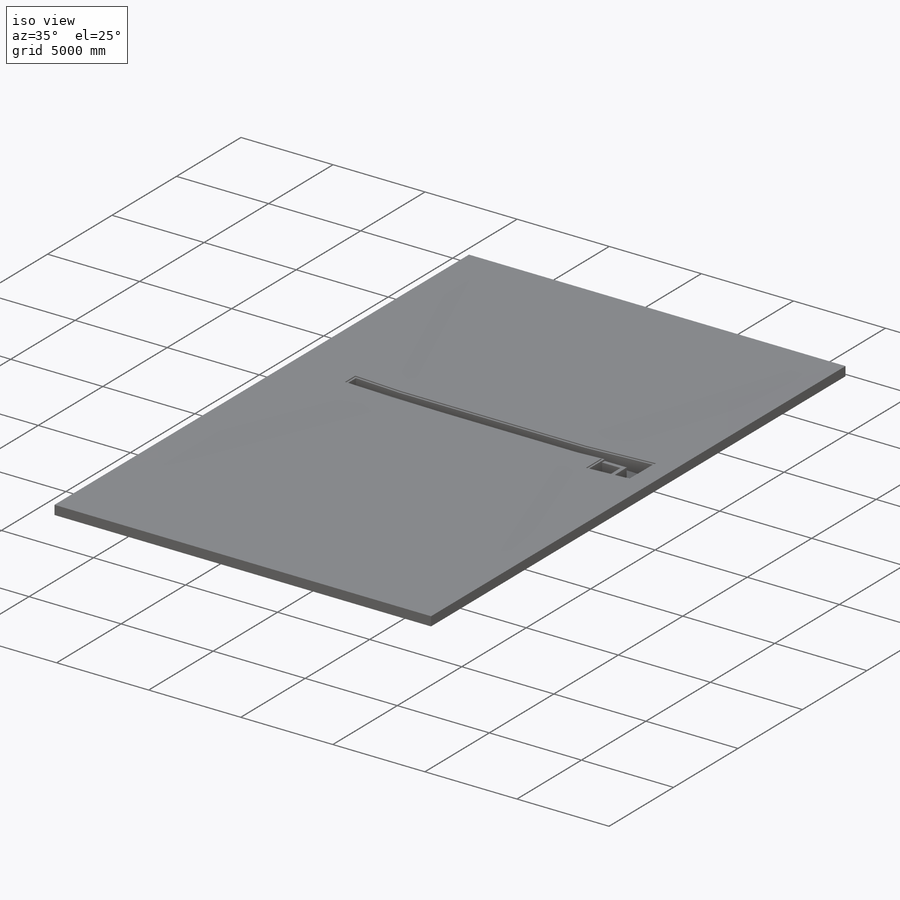
[diagram: iso view]
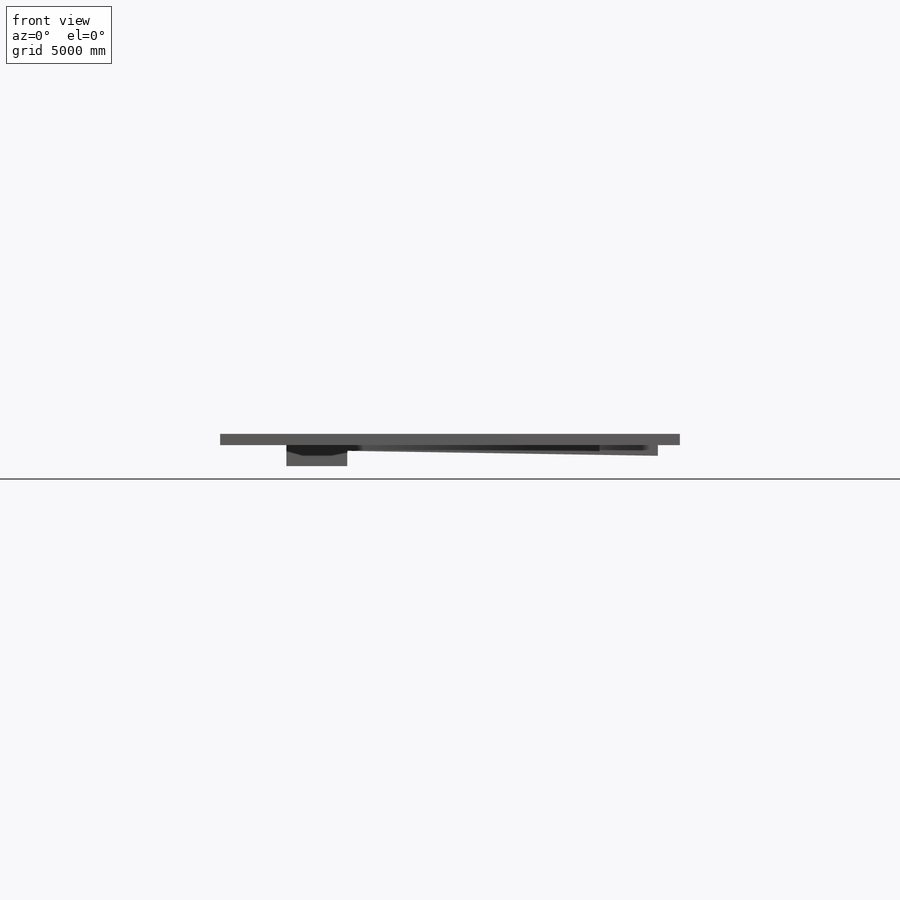
[diagram: front view]
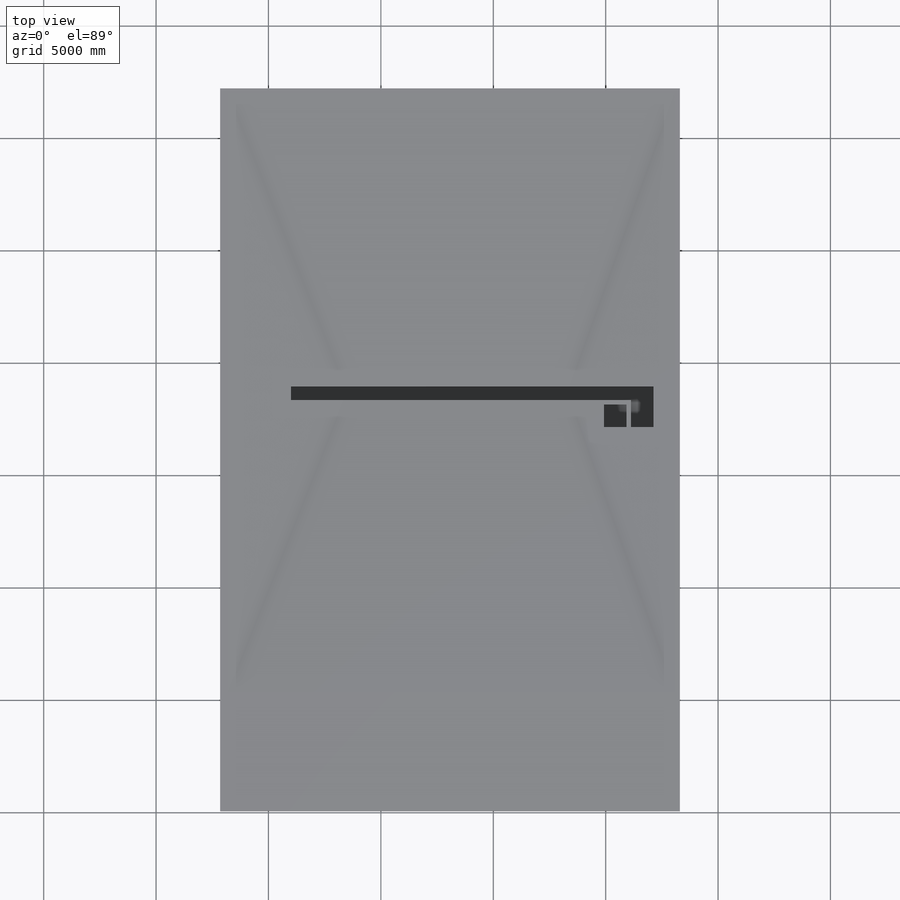
[diagram: top view]
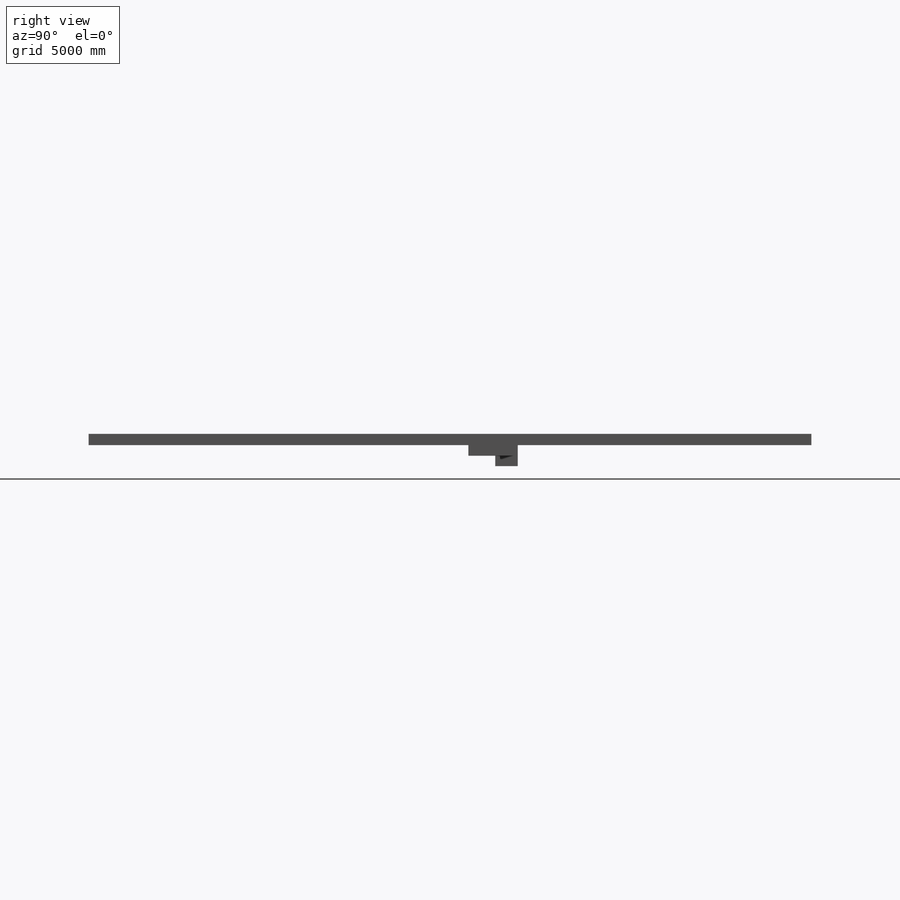
[diagram: right view]
SOLIDWORKS PART (.sldprt)
format: sldprt  version: not decoded by parser v0  size: 441,344 bytes
history: native  units: mm
features: sketch x12, plane x7, extrude x5, cut_extrude x3, material x1 (+9 scaffold rows collapsed; 1 parser-record rows omitted)
feature tree (38):
  scaffold x9  (default folders/planes/origin — collapsed)
  material  "Material <nicht festgelegt>"
  plane  "Ebene vorne"
  plane  "Ebene oben"
  plane  "Ebene rechts"
  sketch  "Skizze1"  dims[D1=20450.0mm D2=32150.0mm D3=130.0mm]
  extrude  "Aufsatz-Linear austragen1"  Depth=500mm
  sketch  "Skizze2"
  extrude  "Aufsatz-Linear austragen2"  [1 undecoded]
  sketch  "Skizze3"
  sketch  "Skizze4"  dims[c1.D1=5000.0mm c1.D2=5100.0mm c1.D3=6050.0mm c1.D4=6050.0mm c1.D5=2500.0mm c1.D6=6050.0mm c1.D7=6200.0mm c1.D8=5000.0mm c1.D9=5000.0mm c2.D3=5590.0mm]
  sketch  "3D-Skizze1"  dims[c1.D1=~799.122543mm c1.D3=200.0mm c1.D2=~672.175453mm c2.D1=200.0mm c2.D2=~9820.68166mm c2.D3=~5283.10535mm c2.D4=~4777.474707mm c2.D5=~19873.286559mm c2.D6=24337.0mm c2.D7=24337.0mm c3.D6=26650.0mm c3.D7=~11778.698103mm c3.D8=~11778.698103mm c4.D7=13325.0mm c4.D1=50.0mm]
  sketch  "Skizze5"  dims[c1.D1=600.0mm c1.D2=165.0mm c1.D3=1180.0mm c1.D4=2200.0mm c1.D5=1800.0mm c2.D3=1180.0mm c2.D6=16125.0mm c2.D7=5285.0mm c2.D2=6790.0mm c3.D3=2305.0mm]
  cut_extrude  "Schnitt-Linear austragen1"  Depth=930mm
  plane  "Ebene1"  Offset=0mm
  sketch  "Skizze6"  dims[D1=200.0mm]
  extrude  "Aufsatz-Linear austragen3"  Depth=930mm
  sketch  "Skizze7"  dims[D1=730.0mm D2=408.0mm]
  plane  "Ebene4"
  parser-record x1  (decoder bookkeeping rows leaked as tree rows — omitted from the tree; the rows remain in map.json)
  sketch  "Skizze8"
  extrude  "Aufsatz-Linear austragen4"  Depth=200mm
  sketch  "Skizze10"  dims[D1=200.0mm D2=0.0mm]
  cut_extrude  "Schnitt-Linear austragen2"  [1 undecoded]
  plane  "Ebene5"
  plane  "Ebene6"  Offset=60mm
  sketch  "Skizze11"  dims[D2=1000.0mm D3=1000.0mm D4=1205.0mm D5=1205.0mm D1=200.0mm]
  extrude  "Aufsatz-Linear austragen11"  [1 undecoded]
  sketch  "Skizze12"  dims[D1=100.0mm D2=100.0mm D3=100.0mm D4=100.0mm D5=100.0mm D6=100.0mm]
  cut_extrude  "Schnitt-Linear austragen4"  [1 undecoded]
decode coverage: 13 of 20 modeling features carry decoded parameters
note: ~ marks probable driven/reference dimensions
note: 4 parameter values undecoded
summary: no parameter record found for 4 features
note: suppression state not decoded; provenance and decode notes live in map.json
